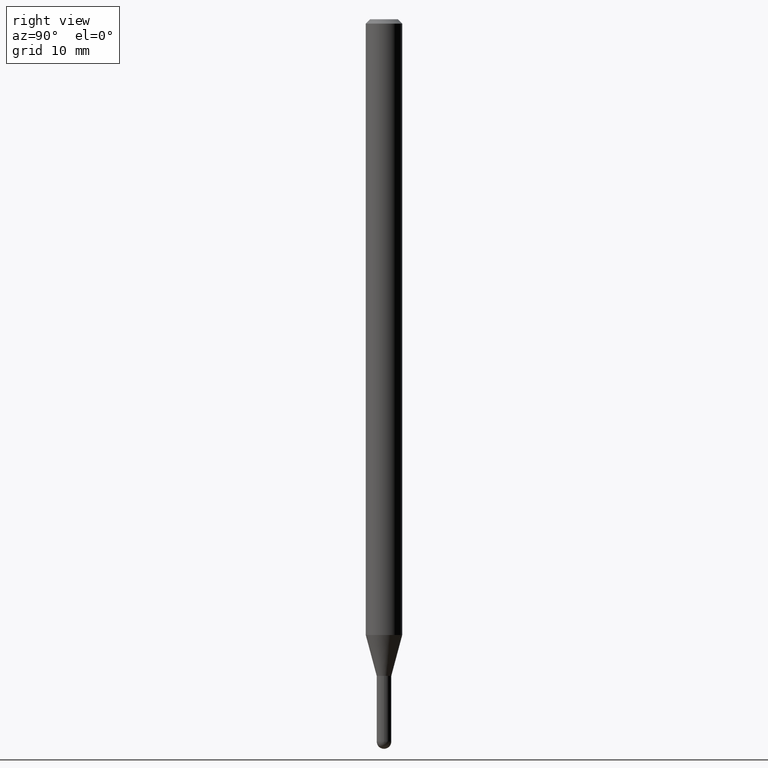
[diagram: clean part render]
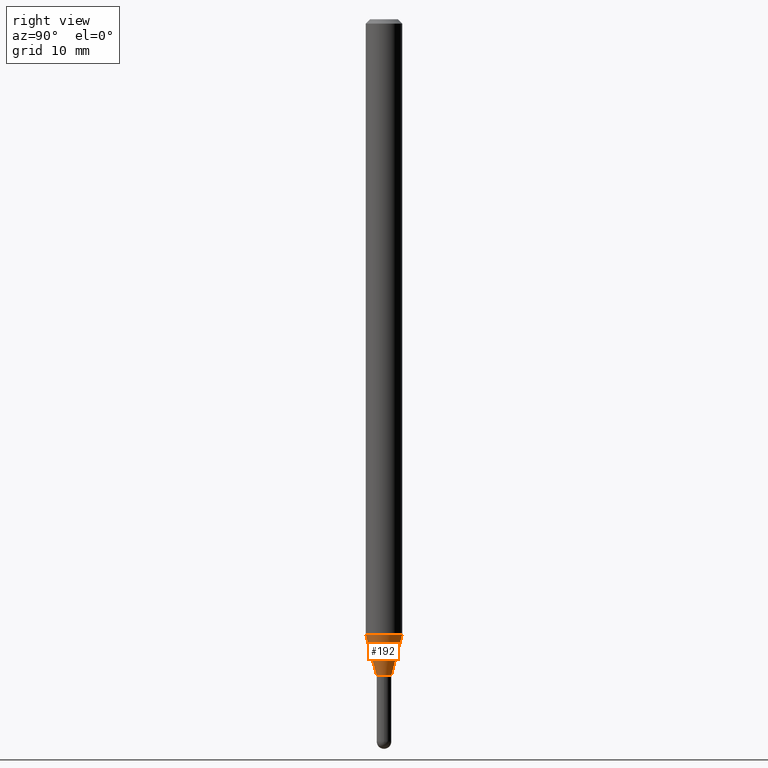
[diagram: same view with one face highlighted and labeled with its STEP entity id]
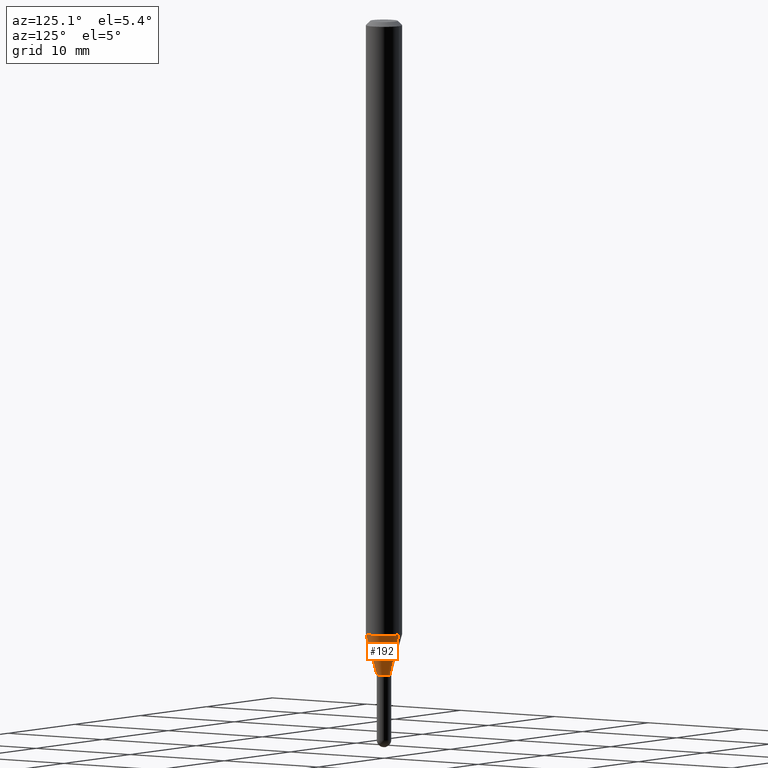
[diagram: same view with one face highlighted and labeled with its STEP entity id]
A machine part, right view. The second image highlights one B-rep face of the part: STEP entity #192.
A second angle (auxiliary view) of the same face is appended — the face is thin or edge-on in the first view.
In plain terms, the highlighted conical surface has half-angle 15 deg.
Its self-contained STEP definition (entity closure, byte-faithful):
#5 = CARTESIAN_POINT ( 'NONE',  ( -1.745740669421030499E-16, -0.02500000000000805744, -2.250000000000000000 ) ) ;
#31 = CARTESIAN_POINT ( 'NONE',  ( 4.440892098501139907E-16, 0.06249999999999261702, -2.110048094716172606 ) ) ;
#46 = CARTESIAN_POINT ( 'NONE',  ( -1.745740669421030499E-16, -0.02500000000000805744, -2.250000000000000000 ) ) ;
#77 = CONICAL_SURFACE ( 'NONE', #331, 0.02500000000000020262, 0.2617993877991574569 ) ;
#82 = DIRECTION ( 'NONE',  ( -6.982962677686265922E-15, -1.000000000000000000, 4.370956789862821150E-15 ) ) ;
#88 = CARTESIAN_POINT ( 'NONE',  ( -4.364351673553401962E-16, -0.06250000000000738298, -2.110048094716172162 ) ) ;
#90 = ORIENTED_EDGE ( 'NONE', *, *, #159, .F. ) ;
#116 = EDGE_CURVE ( 'NONE', #406, #472, #219, .T. ) ;
#119 = CARTESIAN_POINT ( 'NONE',  ( 5.502231403170847918E-29, -7.855938140763213412E-15, -2.250000000000000000 ) ) ;
#129 = VERTEX_POINT ( 'NONE', #46 ) ;
#135 = EDGE_CURVE ( 'NONE', #129, #384, #489, .T. ) ;
#159 = EDGE_CURVE ( 'NONE', #129, #406, #164, .T. ) ;
#164 = LINE ( 'NONE', #5, #457 ) ;
#166 = AXIS2_PLACEMENT_3D ( 'NONE', #357, #194, #82 ) ;
#192 = ADVANCED_FACE ( 'NONE', ( #195 ), #77, .T. ) ;
#194 = DIRECTION ( 'NONE',  ( -2.445436179187043706E-29, 3.491528062561427920E-15, 1.000000000000000000 ) ) ;
#195 = FACE_OUTER_BOUND ( 'NONE', #508, .T. ) ;
#219 = CIRCLE ( 'NONE', #166, 0.06250000000000000000 ) ;
#274 = VECTOR ( 'NONE', #339, 39.37007874015748143 ) ;
#305 = ORIENTED_EDGE ( 'NONE', *, *, #451, .T. ) ;
#319 = DIRECTION ( 'NONE',  ( -6.982962677686266711E-15, -1.000000000000000000, 0.000000000000000000 ) ) ;
#320 = DIRECTION ( 'NONE',  ( -1.807323732225378654E-15, -0.2588190451025251249, 0.9659258262890670910 ) ) ;
#331 = AXIS2_PLACEMENT_3D ( 'NONE', #391, #443, #475 ) ;
#339 = DIRECTION ( 'NONE',  ( 1.839019923739649619E-15, 0.2588190451025318972, 0.9659258262890653146 ) ) ;
#343 = ORIENTED_EDGE ( 'NONE', *, *, #116, .F. ) ;
#357 = CARTESIAN_POINT ( 'NONE',  ( 5.159987950643618711E-29, -7.367292136055791182E-15, -2.110048094716172606 ) ) ;
#380 = AXIS2_PLACEMENT_3D ( 'NONE', #119, #512, #319 ) ;
#384 = VERTEX_POINT ( 'NONE', #404 ) ;
#391 = CARTESIAN_POINT ( 'NONE',  ( 5.502231403170847918E-29, -7.855938140763213412E-15, -2.250000000000000000 ) ) ;
#404 = CARTESIAN_POINT ( 'NONE',  ( 3.108624468950978979E-16, 0.02499999999999235473, -2.250000000000000000 ) ) ;
#406 = VERTEX_POINT ( 'NONE', #88 ) ;
#443 = DIRECTION ( 'NONE',  ( -2.445436179187043706E-29, 3.491528062561427920E-15, 1.000000000000000000 ) ) ;
#451 = EDGE_CURVE ( 'NONE', #384, #472, #503, .T. ) ;
#457 = VECTOR ( 'NONE', #320, 39.37007874015748854 ) ;
#472 = VERTEX_POINT ( 'NONE', #31 ) ;
#475 = DIRECTION ( 'NONE',  ( -6.982962677686266711E-15, -1.000000000000000000, 0.000000000000000000 ) ) ;
#489 = CIRCLE ( 'NONE', #380, 0.02500000000000020262 ) ;
#492 = ORIENTED_EDGE ( 'NONE', *, *, #135, .T. ) ;
#497 = CARTESIAN_POINT ( 'NONE',  ( 1.776356839400814845E-16, 0.02499999999999234779, -2.250000000000000000 ) ) ;
#503 = LINE ( 'NONE', #497, #274 ) ;
#508 = EDGE_LOOP ( 'NONE', ( #492, #305, #343, #90 ) ) ;
#512 = DIRECTION ( 'NONE',  ( -2.445436179187043706E-29, 3.491528062561427920E-15, 1.000000000000000000 ) ) ;